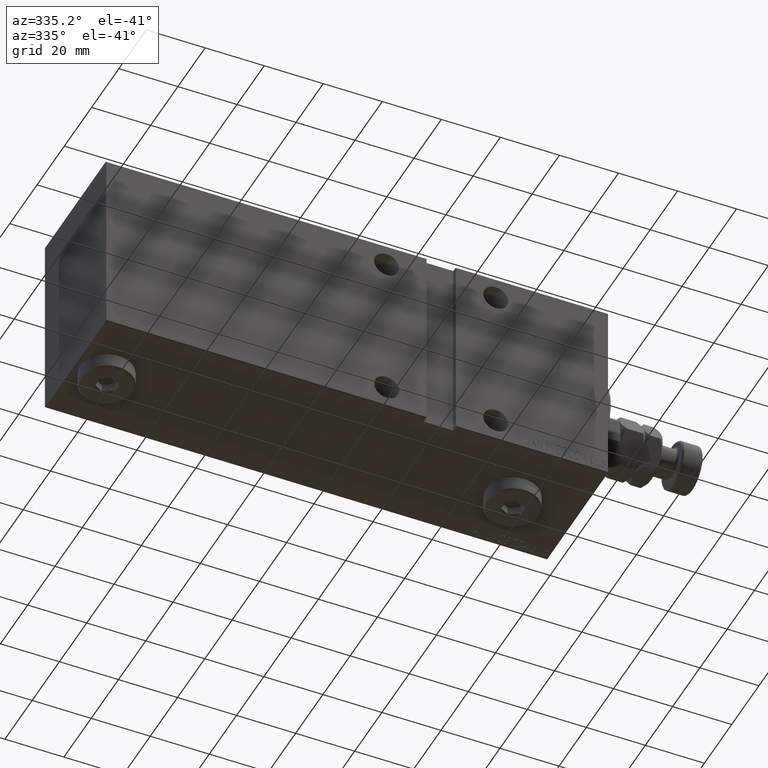
[diagram: clean part render]
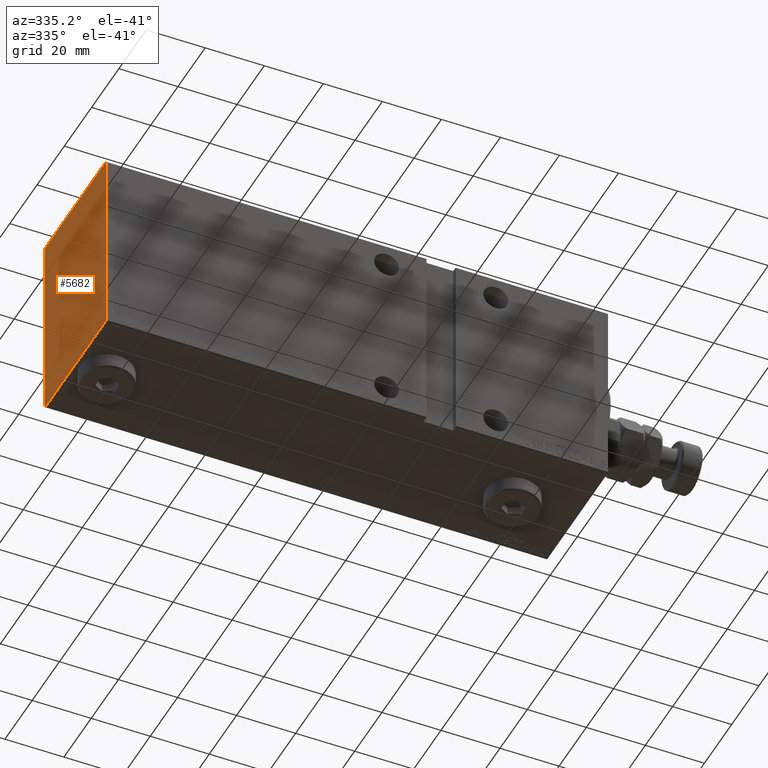
[diagram: same view with one face highlighted and labeled with its STEP entity id]
A machine part, auxiliary view. The second image highlights one B-rep face of the part: STEP entity #5682.
In plain terms, the highlighted planar face has unit normal (-1, -0, 0).
Its self-contained STEP definition (entity closure, byte-faithful):
#1324 = EDGE_CURVE ( 'NONE', #2971, #19282, #27887, .T. ) ;
#2957 = CARTESIAN_POINT ( 'NONE',  ( 170.0000000000000000, -22.49999999999999645, 32.20000000000003126 ) ) ;
#2971 = VERTEX_POINT ( 'NONE', #31899 ) ;
#3204 = CARTESIAN_POINT ( 'NONE',  ( 170.0000000000000000, -22.49999999999999645, 32.50000000000000000 ) ) ;
#4109 = DIRECTION ( 'NONE',  ( 0.000000000000000000, 0.000000000000000000, -1.000000000000000000 ) ) ;
#4450 = LINE ( 'NONE', #15191, #18084 ) ;
#5682 = ADVANCED_FACE ( 'NONE', ( #10059 ), #30581, .T. ) ;
#5842 = DIRECTION ( 'NONE',  ( 0.000000000000000000, 0.000000000000000000, -1.000000000000000000 ) ) ;
#6323 = CARTESIAN_POINT ( 'NONE',  ( 170.0000000000000000, 0.000000000000000000, 0.000000000000000000 ) ) ;
#6468 = LINE ( 'NONE', #3204, #8251 ) ;
#7186 = EDGE_CURVE ( 'NONE', #41438, #7609, #42367, .T. ) ;
#7609 = VERTEX_POINT ( 'NONE', #12201 ) ;
#7626 = VERTEX_POINT ( 'NONE', #40465 ) ;
#7710 = LINE ( 'NONE', #25429, #41247 ) ;
#7733 = DIRECTION ( 'NONE',  ( 0.000000000000000000, -1.000000000000000000, -1.541976423090495633E-16 ) ) ;
#8251 = VECTOR ( 'NONE', #4109, 1000.000000000000000 ) ;
#10059 = FACE_OUTER_BOUND ( 'NONE', #30529, .T. ) ;
#10479 = VERTEX_POINT ( 'NONE', #33260 ) ;
#11179 = EDGE_CURVE ( 'NONE', #16912, #35450, #6468, .T. ) ;
#12201 = CARTESIAN_POINT ( 'NONE',  ( 170.0000000000000000, 22.49999999999999645, 32.19999999999998153 ) ) ;
#13183 = DIRECTION ( 'NONE',  ( 0.000000000000000000, 1.000000000000000000, 0.000000000000000000 ) ) ;
#13555 = DIRECTION ( 'NONE',  ( 1.000000000000000000, 0.000000000000000000, 0.000000000000000000 ) ) ;
#14514 = VECTOR ( 'NONE', #31138, 999.9999999999998863 ) ;
#14538 = DIRECTION ( 'NONE',  ( 0.000000000000000000, -1.067522139062650425E-16, 1.000000000000000000 ) ) ;
#14820 = AXIS2_PLACEMENT_3D ( 'NONE', #6323, #13555, #5842 ) ;
#15191 = CARTESIAN_POINT ( 'NONE',  ( 170.0000000000000000, 27.34999999999999076, -27.34999999999999076 ) ) ;
#16912 = VERTEX_POINT ( 'NONE', #2957 ) ;
#18084 = VECTOR ( 'NONE', #43007, 1000.000000000000114 ) ;
#19282 = VERTEX_POINT ( 'NONE', #44965 ) ;
#19940 = EDGE_CURVE ( 'NONE', #7609, #2971, #7710, .T. ) ;
#20099 = DIRECTION ( 'NONE',  ( -0.000000000000000000, 0.7071067811865474617, -0.7071067811865474617 ) ) ;
#22482 = EDGE_CURVE ( 'NONE', #10479, #7626, #26712, .T. ) ;
#22622 = VECTOR ( 'NONE', #20099, 1000.000000000000114 ) ;
#22770 = CARTESIAN_POINT ( 'NONE',  ( 170.0000000000000000, -22.49999999999999645, -32.20000000000000284 ) ) ;
#22788 = EDGE_CURVE ( 'NONE', #35450, #10479, #23373, .T. ) ;
#23373 = LINE ( 'NONE', #36952, #22622 ) ;
#25353 = ORIENTED_EDGE ( 'NONE', *, *, #1324, .T. ) ;
#25429 = CARTESIAN_POINT ( 'NONE',  ( 170.0000000000000000, 27.35000000000128750, 27.34999999999812559 ) ) ;
#26414 = ORIENTED_EDGE ( 'NONE', *, *, #26824, .T. ) ;
#26603 = VECTOR ( 'NONE', #7733, 1000.000000000000000 ) ;
#26712 = LINE ( 'NONE', #45177, #38333 ) ;
#26824 = EDGE_CURVE ( 'NONE', #7626, #41438, #4450, .T. ) ;
#27887 = LINE ( 'NONE', #39719, #26603 ) ;
#29495 = ORIENTED_EDGE ( 'NONE', *, *, #22482, .T. ) ;
#30407 = CARTESIAN_POINT ( 'NONE',  ( 170.0000000000000000, 22.50000000000000355, -32.19999999999998153 ) ) ;
#30529 = EDGE_LOOP ( 'NONE', ( #29495, #26414, #40943, #32369, #25353, #34186, #42660, #32233 ) ) ;
#30581 = PLANE ( 'NONE',  #14820 ) ;
#31138 = DIRECTION ( 'NONE',  ( 0.000000000000000000, -0.7071067811865802133, -0.7071067811865149322 ) ) ;
#31899 = CARTESIAN_POINT ( 'NONE',  ( 170.0000000000000000, 22.19999999999999929, 32.50000000000000711 ) ) ;
#32233 = ORIENTED_EDGE ( 'NONE', *, *, #22788, .T. ) ;
#32369 = ORIENTED_EDGE ( 'NONE', *, *, #19940, .T. ) ;
#33260 = CARTESIAN_POINT ( 'NONE',  ( 170.0000000000000000, -22.19999999999999929, -32.50000000000000000 ) ) ;
#34186 = ORIENTED_EDGE ( 'NONE', *, *, #37483, .T. ) ;
#35113 = LINE ( 'NONE', #41419, #14514 ) ;
#35450 = VERTEX_POINT ( 'NONE', #22770 ) ;
#36952 = CARTESIAN_POINT ( 'NONE',  ( 170.0000000000000000, -27.35000000000000142, -27.35000000000000142 ) ) ;
#37483 = EDGE_CURVE ( 'NONE', #19282, #16912, #35113, .T. ) ;
#38333 = VECTOR ( 'NONE', #13183, 1000.000000000000000 ) ;
#39079 = CARTESIAN_POINT ( 'NONE',  ( 170.0000000000000000, 22.50000000000000355, -32.50000000000000000 ) ) ;
#39719 = CARTESIAN_POINT ( 'NONE',  ( 170.0000000000000000, 22.49999999999999645, 32.50000000000000711 ) ) ;
#40465 = CARTESIAN_POINT ( 'NONE',  ( 170.0000000000000000, 22.19999999999996732, -32.50000000000000000 ) ) ;
#40943 = ORIENTED_EDGE ( 'NONE', *, *, #7186, .T. ) ;
#41247 = VECTOR ( 'NONE', #43877, 1000.000000000000114 ) ;
#41419 = CARTESIAN_POINT ( 'NONE',  ( 170.0000000000000000, -27.34999999999896758, 27.35000000000149711 ) ) ;
#41438 = VERTEX_POINT ( 'NONE', #30407 ) ;
#41737 = VECTOR ( 'NONE', #14538, 1000.000000000000000 ) ;
#42367 = LINE ( 'NONE', #39079, #41737 ) ;
#42660 = ORIENTED_EDGE ( 'NONE', *, *, #11179, .T. ) ;
#43007 = DIRECTION ( 'NONE',  ( -0.000000000000000000, 0.7071067811865474617, 0.7071067811865474617 ) ) ;
#43877 = DIRECTION ( 'NONE',  ( -0.000000000000000000, -0.7071067811865066055, 0.7071067811865884289 ) ) ;
#44965 = CARTESIAN_POINT ( 'NONE',  ( 170.0000000000000000, -22.19999999999998863, 32.50000000000000000 ) ) ;
#45177 = CARTESIAN_POINT ( 'NONE',  ( 170.0000000000000000, -22.49999999999999645, -32.50000000000000000 ) ) ;